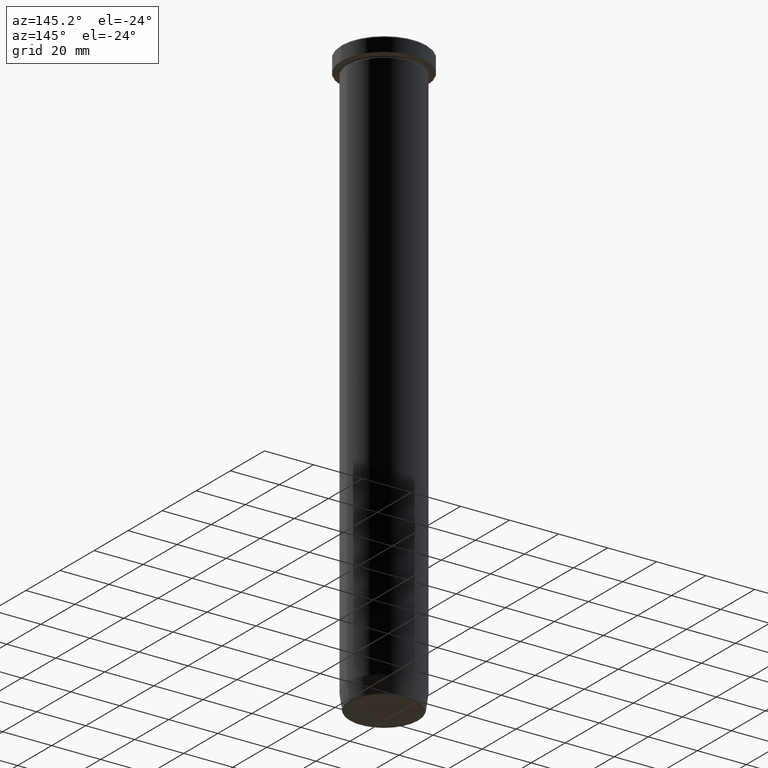
[diagram: clean part render]
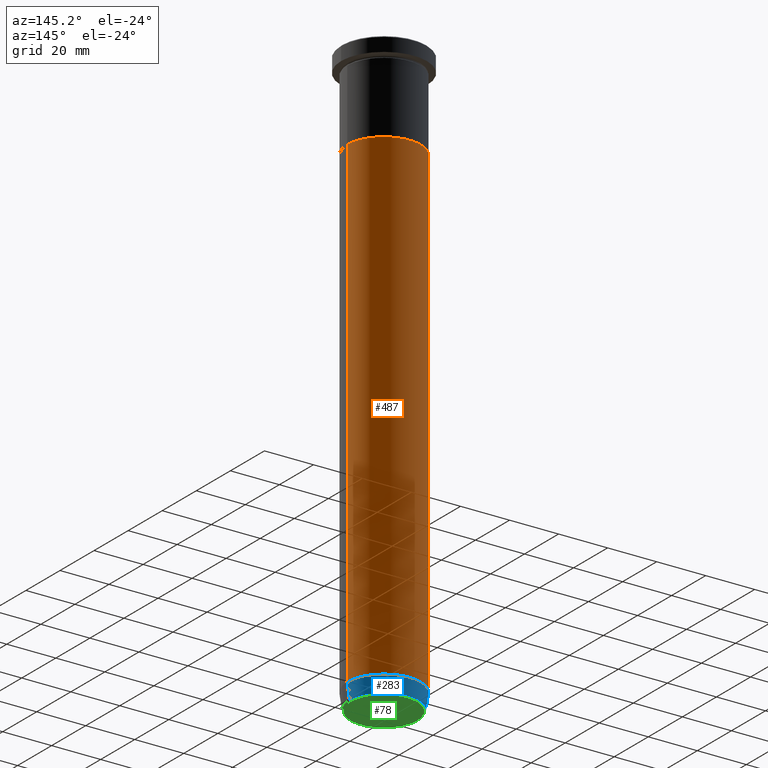
[diagram: same view with three faces highlighted in distinct colors, each labeled with its STEP entity id]
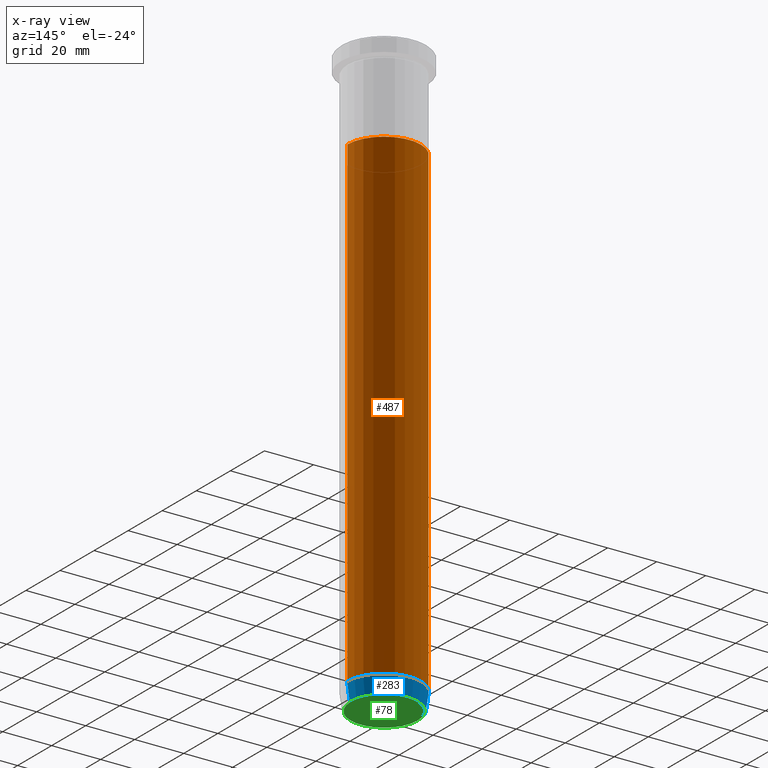
[diagram: x-ray of the same camera — body ghosted, the three highlighted faces saturated]
A machine part, auxiliary view with three faces highlighted in distinct colors.
The next image is the same camera in x-ray (body ghosted, the three faces saturated) — at least one of them is partly hidden behind the body in this view.
Their STEP definitions:

[orange] entity #487 — the highlighted cylindrical surface (partial cylindrical patch) has radius 15 mm, axis along (-0, -0, 1).
#13 = DIRECTION ( 'NONE',  ( 1.000000000000000000, 0.000000000000000000, 0.000000000000000000 ) ) ;
#15 = VECTOR ( 'NONE', #355, 1000.000000000000000 ) ;
#41 = VERTEX_POINT ( 'NONE', #567 ) ;
#58 = VERTEX_POINT ( 'NONE', #332 ) ;
#69 = DIRECTION ( 'NONE',  ( 1.000000000000000000, 0.000000000000000000, 0.000000000000000000 ) ) ;
#70 = ORIENTED_EDGE ( 'NONE', *, *, #245, .F. ) ;
#90 = ORIENTED_EDGE ( 'NONE', *, *, #94, .T. ) ;
#94 = EDGE_CURVE ( 'NONE', #168, #523, #341, .T. ) ;
#95 = DIRECTION ( 'NONE',  ( -0.000000000000000000, -0.000000000000000000, 1.000000000000000000 ) ) ;
#104 = DIRECTION ( 'NONE',  ( 1.000000000000000000, 0.000000000000000000, 0.000000000000000000 ) ) ;
#147 = DIRECTION ( 'NONE',  ( -0.000000000000000000, -0.000000000000000000, 1.000000000000000000 ) ) ;
#152 = DIRECTION ( 'NONE',  ( -0.000000000000000000, -0.000000000000000000, 1.000000000000000000 ) ) ;
#161 = ORIENTED_EDGE ( 'NONE', *, *, #552, .F. ) ;
#168 = VERTEX_POINT ( 'NONE', #397 ) ;
#171 = CARTESIAN_POINT ( 'NONE',  ( -15.00000000000000000, 1.836970198721029589E-15, 0.000000000000000000 ) ) ;
#190 = CARTESIAN_POINT ( 'NONE',  ( 0.000000000000000000, 0.000000000000000000, 0.000000000000000000 ) ) ;
#192 = CARTESIAN_POINT ( 'NONE',  ( 0.000000000000000000, 0.000000000000000000, -232.9999999999999716 ) ) ;
#199 = CYLINDRICAL_SURFACE ( 'NONE', #201, 15.00000000000000000 ) ;
#201 = AXIS2_PLACEMENT_3D ( 'NONE', #190, #147, #13 ) ;
#229 = AXIS2_PLACEMENT_3D ( 'NONE', #265, #490, #69 ) ;
#245 = EDGE_CURVE ( 'NONE', #58, #41, #517, .T. ) ;
#265 = CARTESIAN_POINT ( 'NONE',  ( 0.000000000000000000, 0.000000000000000000, -36.00000000000000000 ) ) ;
#294 = EDGE_CURVE ( 'NONE', #523, #41, #578, .T. ) ;
#318 = EDGE_LOOP ( 'NONE', ( #90, #538, #70, #161 ) ) ;
#332 = CARTESIAN_POINT ( 'NONE',  ( 15.00000000000000000, 0.000000000000000000, -36.00000000000000000 ) ) ;
#335 = CARTESIAN_POINT ( 'NONE',  ( 15.00000000000000000, 0.000000000000000000, 0.000000000000000000 ) ) ;
#341 = CIRCLE ( 'NONE', #373, 15.00000000000000000 ) ;
#355 = DIRECTION ( 'NONE',  ( -0.000000000000000000, -0.000000000000000000, 1.000000000000000000 ) ) ;
#373 = AXIS2_PLACEMENT_3D ( 'NONE', #192, #152, #104 ) ;
#397 = CARTESIAN_POINT ( 'NONE',  ( 15.00000000000000000, 0.000000000000000000, -232.9999999999999716 ) ) ;
#487 = ADVANCED_FACE ( 'NONE', ( #515 ), #199, .T. ) ;
#489 = VECTOR ( 'NONE', #95, 1000.000000000000000 ) ;
#490 = DIRECTION ( 'NONE',  ( -0.000000000000000000, -0.000000000000000000, 1.000000000000000000 ) ) ;
#511 = LINE ( 'NONE', #335, #489 ) ;
#515 = FACE_OUTER_BOUND ( 'NONE', #318, .T. ) ;
#517 = CIRCLE ( 'NONE', #229, 15.00000000000000000 ) ;
#523 = VERTEX_POINT ( 'NONE', #563 ) ;
#538 = ORIENTED_EDGE ( 'NONE', *, *, #294, .T. ) ;
#552 = EDGE_CURVE ( 'NONE', #168, #58, #511, .T. ) ;
#563 = CARTESIAN_POINT ( 'NONE',  ( -15.00000000000000000, 1.836970198721029589E-15, -232.9999999999999716 ) ) ;
#567 = CARTESIAN_POINT ( 'NONE',  ( -15.00000000000000000, 1.836970198721029589E-15, -36.00000000000000000 ) ) ;
#578 = LINE ( 'NONE', #171, #15 ) ;

[blue] entity #283 — the highlighted conical surface has half-angle 8 deg.
#22 = CARTESIAN_POINT ( 'NONE',  ( 0.000000000000000000, 0.000000000000000000, -240.0000000000000000 ) ) ;
#74 = VERTEX_POINT ( 'NONE', #298 ) ;
#94 = EDGE_CURVE ( 'NONE', #168, #523, #341, .T. ) ;
#104 = DIRECTION ( 'NONE',  ( 1.000000000000000000, 0.000000000000000000, 0.000000000000000000 ) ) ;
#112 = DIRECTION ( 'NONE',  ( -0.000000000000000000, -0.000000000000000000, 1.000000000000000000 ) ) ;
#121 = VERTEX_POINT ( 'NONE', #202 ) ;
#125 = DIRECTION ( 'NONE',  ( -0.000000000000000000, -0.000000000000000000, 1.000000000000000000 ) ) ;
#152 = DIRECTION ( 'NONE',  ( -0.000000000000000000, -0.000000000000000000, 1.000000000000000000 ) ) ;
#157 = ORIENTED_EDGE ( 'NONE', *, *, #221, .T. ) ;
#168 = VERTEX_POINT ( 'NONE', #397 ) ;
#173 = DIRECTION ( 'NONE',  ( -1.000000000000000000, 0.000000000000000000, 0.000000000000000000 ) ) ;
#192 = CARTESIAN_POINT ( 'NONE',  ( 0.000000000000000000, 0.000000000000000000, -232.9999999999999716 ) ) ;
#197 = DIRECTION ( 'NONE',  ( -0.1391731009600661317, 1.704378926181564302E-17, 0.9902680687415702510 ) ) ;
#198 = ORIENTED_EDGE ( 'NONE', *, *, #94, .F. ) ;
#202 = CARTESIAN_POINT ( 'NONE',  ( 14.07670482254592059, 0.000000000000000000, -239.5695865504800395 ) ) ;
#206 = DIRECTION ( 'NONE',  ( 1.000000000000000000, 0.000000000000000000, 0.000000000000000000 ) ) ;
#211 = VECTOR ( 'NONE', #197, 1000.000000000000000 ) ;
#221 = EDGE_CURVE ( 'NONE', #121, #74, #454, .T. ) ;
#262 = AXIS2_PLACEMENT_3D ( 'NONE', #22, #112, #206 ) ;
#283 = ADVANCED_FACE ( 'NONE', ( #586 ), #536, .T. ) ;
#291 = EDGE_LOOP ( 'NONE', ( #157, #466, #198, #408 ) ) ;
#298 = CARTESIAN_POINT ( 'NONE',  ( -14.07670482254592059, 1.780434674534163799E-15, -239.5695865504800395 ) ) ;
#331 = DIRECTION ( 'NONE',  ( 0.1391731009600661317, 0.000000000000000000, 0.9902680687415702510 ) ) ;
#341 = CIRCLE ( 'NONE', #373, 15.00000000000000000 ) ;
#373 = AXIS2_PLACEMENT_3D ( 'NONE', #192, #152, #104 ) ;
#374 = CARTESIAN_POINT ( 'NONE',  ( -14.01621415708325280, 1.716491180363582438E-15, -240.0000000000000000 ) ) ;
#376 = AXIS2_PLACEMENT_3D ( 'NONE', #588, #125, #173 ) ;
#397 = CARTESIAN_POINT ( 'NONE',  ( 15.00000000000000000, 0.000000000000000000, -232.9999999999999716 ) ) ;
#408 = ORIENTED_EDGE ( 'NONE', *, *, #494, .F. ) ;
#420 = CARTESIAN_POINT ( 'NONE',  ( 14.01621415708325280, 0.000000000000000000, -240.0000000000000000 ) ) ;
#454 = CIRCLE ( 'NONE', #376, 14.07670482254592059 ) ;
#466 = ORIENTED_EDGE ( 'NONE', *, *, #512, .T. ) ;
#467 = LINE ( 'NONE', #420, #569 ) ;
#494 = EDGE_CURVE ( 'NONE', #121, #168, #467, .T. ) ;
#512 = EDGE_CURVE ( 'NONE', #74, #523, #513, .T. ) ;
#513 = LINE ( 'NONE', #374, #211 ) ;
#523 = VERTEX_POINT ( 'NONE', #563 ) ;
#536 = CONICAL_SURFACE ( 'NONE', #262, 14.01621415708325280, 0.1396263401595470577 ) ;
#563 = CARTESIAN_POINT ( 'NONE',  ( -15.00000000000000000, 1.836970198721029589E-15, -232.9999999999999716 ) ) ;
#569 = VECTOR ( 'NONE', #331, 1000.000000000000000 ) ;
#586 = FACE_OUTER_BOUND ( 'NONE', #291, .T. ) ;
#588 = CARTESIAN_POINT ( 'NONE',  ( 0.000000000000000000, 0.000000000000000000, -239.5695865504800395 ) ) ;

[green] entity #78 — the highlighted planar face has unit normal (0, -0, 1).
#5 = DIRECTION ( 'NONE',  ( 1.000000000000000000, 0.000000000000000000, 0.000000000000000000 ) ) ;
#11 = AXIS2_PLACEMENT_3D ( 'NONE', #429, #288, #438 ) ;
#52 = DIRECTION ( 'NONE',  ( 0.000000000000000000, 0.000000000000000000, -1.000000000000000000 ) ) ;
#63 = DIRECTION ( 'NONE',  ( 0.000000000000000000, 0.000000000000000000, -1.000000000000000000 ) ) ;
#75 = CIRCLE ( 'NONE', #208, 13.58157078817513863 ) ;
#78 = ADVANCED_FACE ( 'NONE', ( #564 ), #293, .F. ) ;
#92 = CIRCLE ( 'NONE', #128, 13.58157078817513863 ) ;
#126 = EDGE_CURVE ( 'NONE', #573, #541, #75, .T. ) ;
#128 = AXIS2_PLACEMENT_3D ( 'NONE', #188, #63, #243 ) ;
#188 = CARTESIAN_POINT ( 'NONE',  ( 0.000000000000000000, 0.000000000000000000, -240.0000000000000000 ) ) ;
#204 = CARTESIAN_POINT ( 'NONE',  ( 0.000000000000000000, 0.000000000000000000, -240.0000000000000000 ) ) ;
#208 = AXIS2_PLACEMENT_3D ( 'NONE', #204, #52, #5 ) ;
#243 = DIRECTION ( 'NONE',  ( 1.000000000000000000, 0.000000000000000000, 0.000000000000000000 ) ) ;
#288 = DIRECTION ( 'NONE',  ( 0.000000000000000000, -0.000000000000000000, 1.000000000000000000 ) ) ;
#293 = PLANE ( 'NONE',  #11 ) ;
#328 = CARTESIAN_POINT ( 'NONE',  ( -13.58157078817513863, 1.693580934830242487E-15, -240.0000000000000000 ) ) ;
#428 = CARTESIAN_POINT ( 'NONE',  ( 13.58157078817513863, 0.000000000000000000, -240.0000000000000000 ) ) ;
#429 = CARTESIAN_POINT ( 'NONE',  ( 0.000000000000000000, 1.959434878635764895E-14, -240.0000000000000000 ) ) ;
#438 = DIRECTION ( 'NONE',  ( 1.000000000000000000, 0.000000000000000000, 0.000000000000000000 ) ) ;
#477 = ORIENTED_EDGE ( 'NONE', *, *, #126, .T. ) ;
#507 = EDGE_CURVE ( 'NONE', #541, #573, #92, .T. ) ;
#541 = VERTEX_POINT ( 'NONE', #328 ) ;
#555 = EDGE_LOOP ( 'NONE', ( #477, #594 ) ) ;
#564 = FACE_OUTER_BOUND ( 'NONE', #555, .T. ) ;
#573 = VERTEX_POINT ( 'NONE', #428 ) ;
#594 = ORIENTED_EDGE ( 'NONE', *, *, #507, .T. ) ;